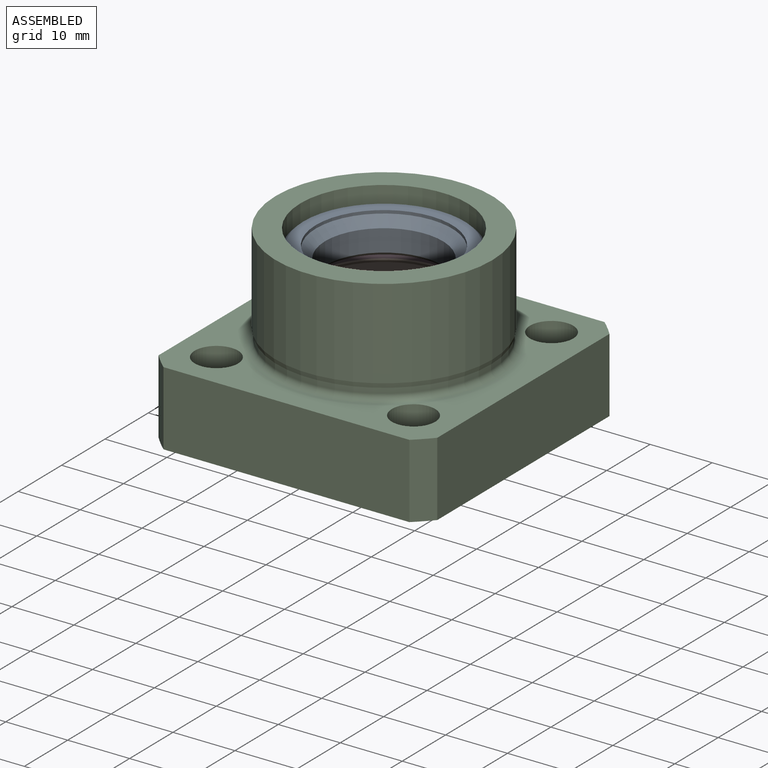
[diagram: assembled view]
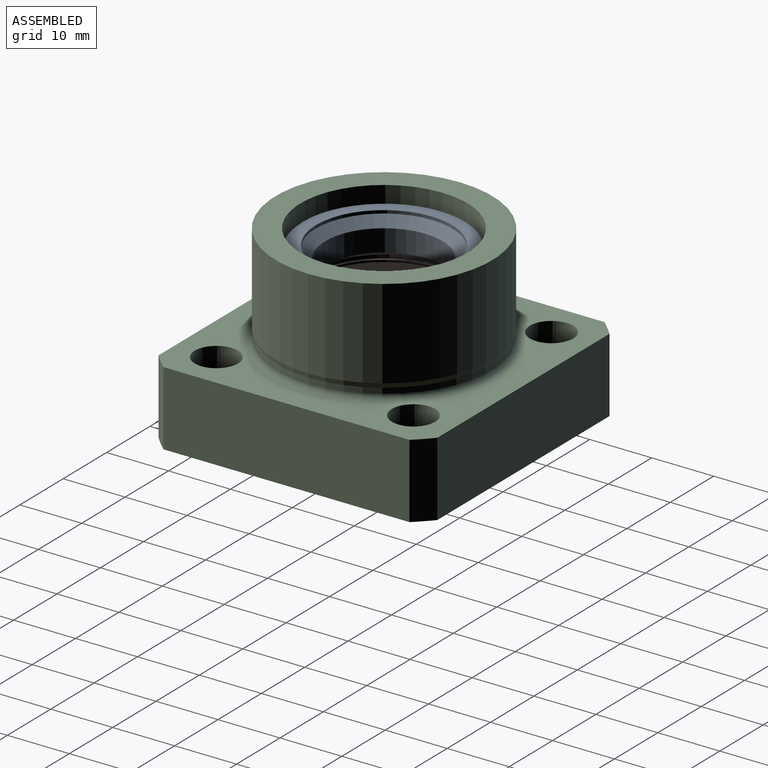
[diagram: assembled view, second angle]
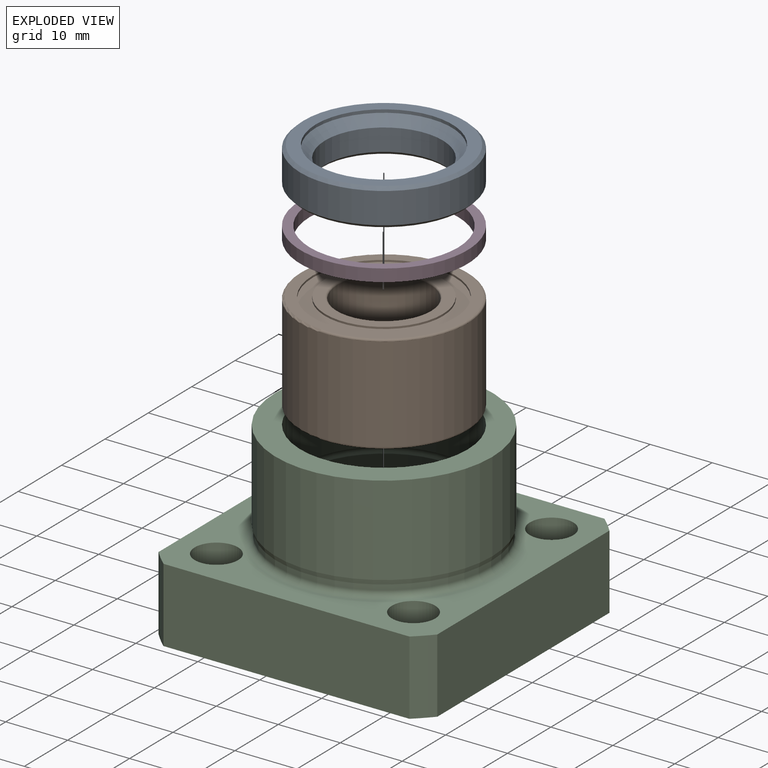
[diagram: exploded view]
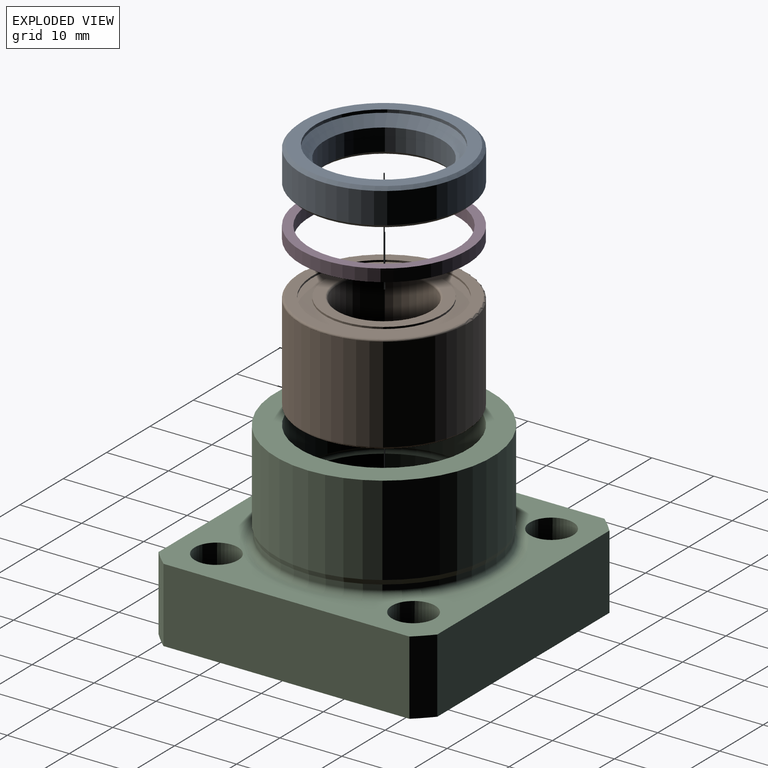
[diagram: exploded view, second angle]
ASSEMBLY  parts=4 mates=3
PART A: 17 faces, bbox 27x27x6 mm
  f0: torus R=10.25mm, axis (0,0,-1), area 104.3mm2, adj f3,f12
  f1: cone r=12.25mm half-angle=45deg, axis (0,0,-1), area 21.9mm2, adj f4,f15
  f2: cone r=10.05mm half-angle=45deg, axis (0,0,1), area 18mm2, adj f12,f13
  f3: cylinder r=10.25mm len=20.5mm, axis (0,0,1), area 193.2mm2, adj f0,f16
  f4: cylinder r=12.25mm len=24.5mm, axis (0,0,1), area 331mm2, adj f1,f16
  f5: cone r=10mm half-angle=45deg, axis (0,0,-1), area 43.3mm2, adj f10,f13
  f6: cone r=13.5mm half-angle=45deg, axis (0,0,1), area 58.9mm2, adj f11,f15
  f7: cone r=13mm half-angle=45deg, axis (0,0,-1), area 58.9mm2, adj f11,f14
  f8: cone r=11mm half-angle=46deg, axis (0,0,1), area 134.3mm2, adj f9,f10
  f9: cylinder r=11mm len=22mm, axis (0,0,-1), area 34.6mm2, adj f8,f14
  f10: cylinder r=9.5mm len=19mm, axis (0,0,1), area 212mm2, adj f5,f8
  f11: cylinder r=13.5mm len=27mm, axis (0,0,1), area 424.1mm2, adj f6,f7
  f12: cylinder r=10.25mm len=20.5mm, axis (0,0,1), area 19.3mm2, adj f0,f2
  f13: plane 20.1x20.1mm, normal (0,0,-1), area 3.1mm2, adj f2,f5
  f14: plane 26x26mm, normal (0,0,1), area 150.8mm2, adj f7,f9
  f15: plane 26x26mm, normal (0,0,-1), area 44mm2, adj f1,f6
  f16: plane 24.5x24.5mm, normal (0,0,-1), area 141.4mm2, adj f3,f4
PART B: 16 faces, bbox 29.2x29.2x16 mm
  f0: torus R=13.2mm, axis (0,0,-1), area 39.6mm2, adj f1,f10
  f1: cylinder r=13.5mm len=27mm, axis (0,0,1), area 1306.3mm2, adj f0,f2
  f2: torus R=13.2mm, axis (0,0,-1), area 39.6mm2, adj f1,f15
  f3: cylinder r=11.5mm len=23mm, axis (0,0,1), area 21.7mm2, adj f14,f15
  f4: cylinder r=9.5mm len=19mm, axis (0,0,1), area 17.9mm2, adj f13,f14
  f5: torus R=7.8mm, axis (0,0,-1), area 22.5mm2, adj f6,f13
  f6: cylinder r=7.5mm len=15.4mm, axis (0,0,1), area 725.7mm2, adj f5,f7
  f7: torus R=7.8mm, axis (0,0,-1), area 22.5mm2, adj f6,f12
  f8: cylinder r=9.5mm len=19mm, axis (0,0,1), area 17.9mm2, adj f11,f12
  f9: cylinder r=11.5mm len=23mm, axis (0,0,1), area 21.7mm2, adj f10,f11
  f10: plane 26.4x26.4mm, normal (0,0,-1), area 131.9mm2, adj f0,f9
  f11: plane 23x23mm, normal (0,0,-1), area 131.9mm2, adj f8,f9
  f12: plane 19x19mm, normal (0,0,-1), area 92.4mm2, adj f7,f8
  f13: plane 19x19mm, normal (0,0,1), area 92.4mm2, adj f4,f5
  f14: plane 23x23mm, normal (0,0,1), area 131.9mm2, adj f3,f4
  f15: plane 26.4x26.4mm, normal (0,0,1), area 131.9mm2, adj f2,f3
PART C: 36 faces, bbox 45x45x29 mm
  f0: torus R=13.5mm, axis (0,0,-1), area 136.4mm2, adj f16,f18
  f1: cylinder r=1.5mm len=3mm, axis (0,0,-1), area 9.4mm2, adj f19,f20
  f2: cylinder r=10mm len=20mm, axis (0,0,-1), area 125.7mm2, adj f20,f22
  f3: cylinder r=3.5mm len=8mm, axis (0,0,1), area 175.9mm2, adj f14,f23,f35
  f4: cylinder r=3.5mm len=8mm, axis (0,0,1), area 175.9mm2, adj f14,f24,f35
  f5: cylinder r=3.5mm len=8mm, axis (0,0,1), area 175.9mm2, adj f14,f25,f35
  f6: cylinder r=3.5mm len=8mm, axis (0,0,1), area 175.9mm2, adj f14,f26,f35
  f7: cylinder r=6mm len=12mm, axis (0,0,1), area 150.8mm2, adj f19,f26
  f8: cylinder r=6mm len=12mm, axis (0,0,1), area 150.8mm2, adj f19,f25
  f9: cylinder r=6mm len=12mm, axis (0,0,1), area 150.8mm2, adj f19,f24
  f10: cylinder r=6mm len=12mm, axis (0,0,1), area 150.8mm2, adj f19,f23
  f11: torus R=18.3mm, axis (0,0,-1), area 190mm2, adj f12,f14
  f12: cylinder r=17.3mm len=34.6mm, axis (0,0,1), area 92.8mm2, adj f11,f13
  f13: cone r=17.5mm half-angle=15deg, axis (0,0,1), area 84.5mm2, adj f12,f17
  f14: cone r=18.44mm half-angle=82.2deg, axis (0,0,1), area 79.1mm2, adj f3,f4,f5,f6,f11,f35
  f15: torus R=13.2mm, axis (0,0,1), area 39.6mm2, adj f18,f22
  f16: cylinder r=13.5mm len=27mm, axis (0,0,-1), area 805.8mm2, adj f0,f21
  f17: cylinder r=17.5mm len=35mm, axis (0,0,1), area 1594.4mm2, adj f13,f21
  f18: cylinder r=13.5mm len=27mm, axis (0,0,-1), area 1289.3mm2, adj f0,f15
  f19: plane 45x45mm, normal (0,0,-1), area 1552mm2, adj f1,f7,f8,f9,f10,f27,f28,f29
  f20: plane 20x20mm, normal (0,0,1), area 307.1mm2, adj f1,f2
  f21: plane 35x35mm, normal (0,0,1), area 389.6mm2, adj f16,f17
  f22: plane 26.4x26.4mm, normal (0,0,1), area 233.2mm2, adj f2,f15
  f23: plane 12x12mm, normal (0,0,-1), area 74.6mm2, adj f3,f10
  f24: plane 12x12mm, normal (0,0,-1), area 74.6mm2, adj f4,f9
  f25: plane 12x12mm, normal (0,0,-1), area 74.6mm2, adj f5,f8
  f26: plane 12x12mm, normal (0,0,-1), area 74.6mm2, adj f6,f7
  f27: plane 39.69x12mm, normal (1,0,0), area 476.2mm2, adj f19,f28,f34,f35
  f28: cylinder r=30mm len=12mm, axis (0,0,1), area 45.1mm2, adj f19,f27,f29,f35
  f29: plane 39.69x12mm, normal (0,-1,0), area 476.2mm2, adj f19,f28,f30,f35
  f30: cylinder r=30mm len=12mm, axis (0,0,1), area 45.1mm2, adj f19,f29,f31,f35
  f31: plane 39.69x12mm, normal (-1,0,0), area 476.2mm2, adj f19,f30,f32,f35
  f32: cylinder r=30mm len=12mm, axis (0,0,1), area 45.1mm2, adj f19,f31,f33,f35
  f33: plane 39.69x12mm, normal (0,1,0), area 476.2mm2, adj f19,f32,f34,f35
  f34: cylinder r=30mm len=12mm, axis (0,0,1), area 45.1mm2, adj f19,f27,f33,f35
  f35: plane 45x45mm, normal (0,0,1), area 711.9mm2, adj f3,f4,f5,f6,f14,f27,f28,f29
PART D: 4 faces, bbox 27x27x2 mm
  f0: cylinder r=12mm len=24mm, axis (0,0,1), area 150.8mm2, adj f2,f3
  f1: cylinder r=13.5mm len=27mm, axis (0,0,1), area 169.6mm2, adj f2,f3
  f2: plane 27x27mm, normal (0,0,-1), area 120.2mm2, adj f0,f1
  f3: plane 27x27mm, normal (0,0,1), area 120.2mm2, adj f0,f1
PLACE A t=(-35.37,-7.96,3.7)mm
PLACE B t=(-35.37,-7.96,4.2)mm
PLACE C t=(-35.37,-7.96,4.2)mm
PLACE D t=(-35.37,-7.96,4.2)mm
MATE fastened A.f0 <-> D.f0  axis (0,0,1) through (-35.37,-7.96,25.2)mm
MATE fastened B.f0 <-> D.f0  axis (0,0,1) through (-35.37,-7.96,23.2)mm
MATE fastened B.f0 <-> C.f0  axis (0,0,-1) through (-35.37,-7.96,7.2)mm
